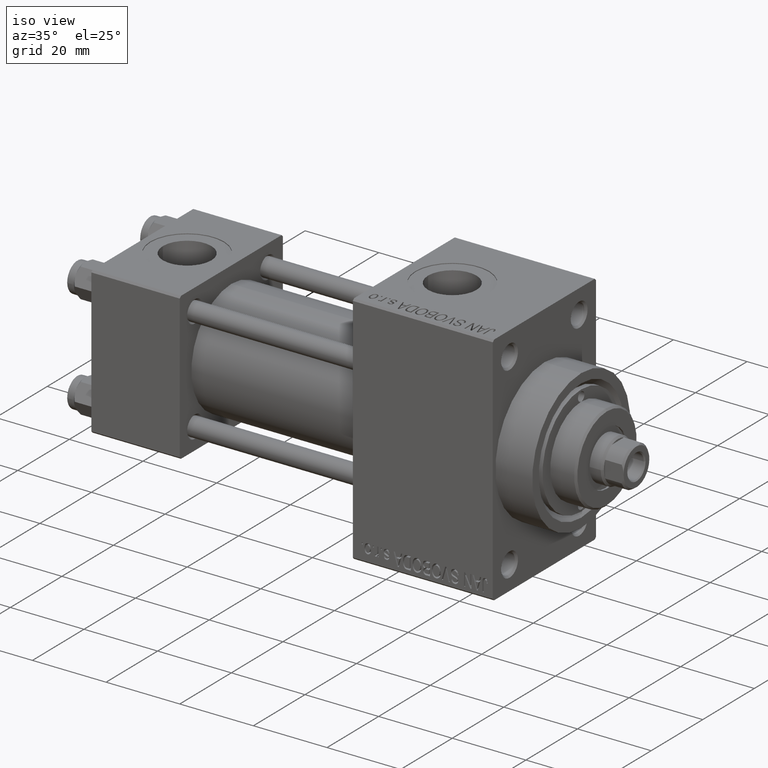
[diagram: clean part render]
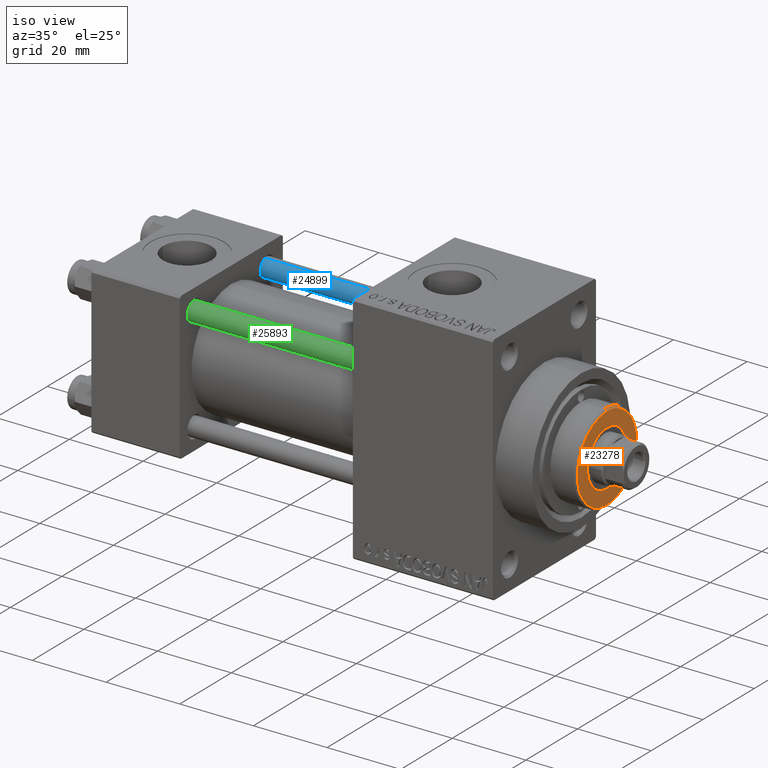
[diagram: same view with three faces highlighted in distinct colors, each labeled with its STEP entity id]
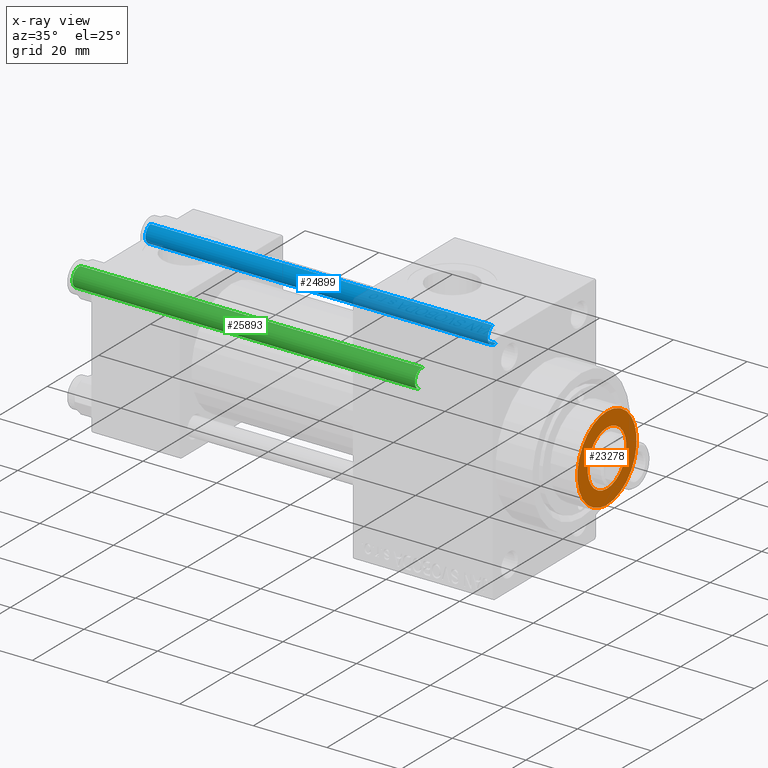
[diagram: x-ray of the same camera — body ghosted, the three highlighted faces saturated]
A machine part, iso view with three faces highlighted in distinct colors.
The next image is the same camera in x-ray (body ghosted, the three faces saturated) — at least one of them is partly hidden behind the body in this view.
Their STEP definitions:

[orange] entity #23278 — the highlighted planar face has unit normal (1, -0, -0).
#653 = DIRECTION ( 'NONE',  ( 1.000000000000000000, 0.000000000000000000, 0.000000000000000000 ) ) ;
#1772 = EDGE_LOOP ( 'NONE', ( #30188, #6991 ) ) ;
#2555 = CIRCLE ( 'NONE', #23143, 7.500000000000000888 ) ;
#3414 = CIRCLE ( 'NONE', #31114, 7.500000000000000888 ) ;
#5185 = AXIS2_PLACEMENT_3D ( 'NONE', #12958, #42698, #12477 ) ;
#6991 = ORIENTED_EDGE ( 'NONE', *, *, #14705, .F. ) ;
#7500 = AXIS2_PLACEMENT_3D ( 'NONE', #20636, #47374, #9733 ) ;
#7755 = CARTESIAN_POINT ( 'NONE',  ( 11.50000000000000355, 1.438959988998140357E-15, 50.25999999999999801 ) ) ;
#8361 = DIRECTION ( 'NONE',  ( 0.000000000000000000, 0.000000000000000000, 1.000000000000000000 ) ) ;
#8615 = ORIENTED_EDGE ( 'NONE', *, *, #36441, .T. ) ;
#9733 = DIRECTION ( 'NONE',  ( 1.000000000000000000, 0.000000000000000000, -0.000000000000000000 ) ) ;
#10148 = VERTEX_POINT ( 'NONE', #28682 ) ;
#12034 = CARTESIAN_POINT ( 'NONE',  ( 0.000000000000000000, 0.000000000000000000, 50.25999999999999801 ) ) ;
#12477 = DIRECTION ( 'NONE',  ( 1.000000000000000000, 0.000000000000000000, 0.000000000000000000 ) ) ;
#12955 = PLANE ( 'NONE',  #7500 ) ;
#12958 = CARTESIAN_POINT ( 'NONE',  ( 0.000000000000000000, 0.000000000000000000, 50.25999999999999801 ) ) ;
#12982 = DIRECTION ( 'NONE',  ( 1.000000000000000000, 0.000000000000000000, 0.000000000000000000 ) ) ;
#13707 = CIRCLE ( 'NONE', #20813, 11.50000000000000355 ) ;
#14705 = EDGE_CURVE ( 'NONE', #10148, #14880, #2555, .T. ) ;
#14880 = VERTEX_POINT ( 'NONE', #21843 ) ;
#16140 = EDGE_CURVE ( 'NONE', #35988, #19421, #13707, .T. ) ;
#19421 = VERTEX_POINT ( 'NONE', #7755 ) ;
#20040 = EDGE_CURVE ( 'NONE', #14880, #10148, #3414, .T. ) ;
#20207 = CIRCLE ( 'NONE', #5185, 11.50000000000000355 ) ;
#20636 = CARTESIAN_POINT ( 'NONE',  ( 0.000000000000000000, 0.000000000000000000, 50.25999999999999801 ) ) ;
#20813 = AXIS2_PLACEMENT_3D ( 'NONE', #42285, #8361, #23474 ) ;
#21843 = CARTESIAN_POINT ( 'NONE',  ( 7.500000000000000888, 0.000000000000000000, 50.25999999999999801 ) ) ;
#23143 = AXIS2_PLACEMENT_3D ( 'NONE', #12034, #24350, #653 ) ;
#23278 = ADVANCED_FACE ( 'NONE', ( #31070, #47128 ), #12955, .T. ) ;
#23474 = DIRECTION ( 'NONE',  ( 1.000000000000000000, 0.000000000000000000, 0.000000000000000000 ) ) ;
#24350 = DIRECTION ( 'NONE',  ( 0.000000000000000000, 0.000000000000000000, 1.000000000000000000 ) ) ;
#28682 = CARTESIAN_POINT ( 'NONE',  ( -7.500000000000000888, 9.184850993605149917E-16, 50.25999999999999801 ) ) ;
#30188 = ORIENTED_EDGE ( 'NONE', *, *, #20040, .F. ) ;
#31070 = FACE_BOUND ( 'NONE', #1772, .T. ) ;
#31114 = AXIS2_PLACEMENT_3D ( 'NONE', #35767, #39729, #12982 ) ;
#35767 = CARTESIAN_POINT ( 'NONE',  ( 0.000000000000000000, 0.000000000000000000, 50.25999999999999801 ) ) ;
#35988 = VERTEX_POINT ( 'NONE', #41605 ) ;
#36441 = EDGE_CURVE ( 'NONE', #19421, #35988, #20207, .T. ) ;
#39729 = DIRECTION ( 'NONE',  ( 0.000000000000000000, 0.000000000000000000, 1.000000000000000000 ) ) ;
#41605 = CARTESIAN_POINT ( 'NONE',  ( -11.50000000000000355, 0.000000000000000000, 50.25999999999999801 ) ) ;
#42285 = CARTESIAN_POINT ( 'NONE',  ( 0.000000000000000000, 0.000000000000000000, 50.25999999999999801 ) ) ;
#42698 = DIRECTION ( 'NONE',  ( 0.000000000000000000, 0.000000000000000000, 1.000000000000000000 ) ) ;
#43842 = EDGE_LOOP ( 'NONE', ( #47123, #8615 ) ) ;
#47123 = ORIENTED_EDGE ( 'NONE', *, *, #16140, .T. ) ;
#47128 = FACE_OUTER_BOUND ( 'NONE', #43842, .T. ) ;
#47374 = DIRECTION ( 'NONE',  ( 0.000000000000000000, 0.000000000000000000, 1.000000000000000000 ) ) ;

[blue] entity #24899 — the highlighted cylindrical surface (edge-blend (fillet) strip) has radius 2.5 mm, axis along (-1, -0, 0).
#429 = CARTESIAN_POINT ( 'NONE',  ( -2.500000000000000000, 0.000000000000000000, 94.00000000000000000 ) ) ;
#650 = CARTESIAN_POINT ( 'NONE',  ( 2.500000000000000000, 3.061616997868383141E-16, 0.5000000000000004441 ) ) ;
#2886 = EDGE_CURVE ( 'NONE', #41566, #31025, #34594, .T. ) ;
#3067 = ORIENTED_EDGE ( 'NONE', *, *, #2886, .T. ) ;
#3293 = CARTESIAN_POINT ( 'NONE',  ( 2.500000000000000000, 3.061616997868383141E-16, 93.50000000000001421 ) ) ;
#5073 = DIRECTION ( 'NONE',  ( -0.000000000000000000, -0.000000000000000000, 1.000000000000000000 ) ) ;
#7037 = VECTOR ( 'NONE', #45248, 1000.000000000000000 ) ;
#8443 = CYLINDRICAL_SURFACE ( 'NONE', #9922, 2.500000000000000000 ) ;
#8491 = CARTESIAN_POINT ( 'NONE',  ( 2.500000000000000000, 3.061616997868383141E-16, 94.00000000000000000 ) ) ;
#8938 = DIRECTION ( 'NONE',  ( 1.000000000000000000, 0.000000000000000000, 0.000000000000000000 ) ) ;
#9922 = AXIS2_PLACEMENT_3D ( 'NONE', #23559, #19829, #24043 ) ;
#10289 = VERTEX_POINT ( 'NONE', #650 ) ;
#10313 = ORIENTED_EDGE ( 'NONE', *, *, #29438, .T. ) ;
#12651 = DIRECTION ( 'NONE',  ( 0.000000000000000000, 0.000000000000000000, -1.000000000000000000 ) ) ;
#17742 = AXIS2_PLACEMENT_3D ( 'NONE', #46578, #12651, #8938 ) ;
#19322 = CIRCLE ( 'NONE', #17742, 2.500000000000000000 ) ;
#19829 = DIRECTION ( 'NONE',  ( -0.000000000000000000, -0.000000000000000000, -1.000000000000000000 ) ) ;
#23559 = CARTESIAN_POINT ( 'NONE',  ( 0.000000000000000000, 0.000000000000000000, 94.00000000000000000 ) ) ;
#23610 = DIRECTION ( 'NONE',  ( -0.000000000000000000, -0.000000000000000000, -1.000000000000000000 ) ) ;
#23662 = ORIENTED_EDGE ( 'NONE', *, *, #28581, .T. ) ;
#24043 = DIRECTION ( 'NONE',  ( -1.000000000000000000, 0.000000000000000000, 0.000000000000000000 ) ) ;
#24050 = CARTESIAN_POINT ( 'NONE',  ( -2.500000000000000000, 0.000000000000000000, 0.5000000000000004441 ) ) ;
#24899 = ADVANCED_FACE ( 'NONE', ( #42371 ), #8443, .T. ) ;
#27316 = ORIENTED_EDGE ( 'NONE', *, *, #29910, .F. ) ;
#28051 = AXIS2_PLACEMENT_3D ( 'NONE', #38536, #5073, #31101 ) ;
#28581 = EDGE_CURVE ( 'NONE', #33506, #41566, #19322, .T. ) ;
#29438 = EDGE_CURVE ( 'NONE', #31025, #10289, #43868, .T. ) ;
#29910 = EDGE_CURVE ( 'NONE', #33506, #10289, #42421, .T. ) ;
#31025 = VERTEX_POINT ( 'NONE', #24050 ) ;
#31101 = DIRECTION ( 'NONE',  ( 1.000000000000000000, 0.000000000000000000, 0.000000000000000000 ) ) ;
#33506 = VERTEX_POINT ( 'NONE', #3293 ) ;
#34594 = LINE ( 'NONE', #429, #7037 ) ;
#38536 = CARTESIAN_POINT ( 'NONE',  ( 0.000000000000000000, 0.000000000000000000, 0.5000000000000004441 ) ) ;
#39903 = VECTOR ( 'NONE', #23610, 1000.000000000000000 ) ;
#41566 = VERTEX_POINT ( 'NONE', #45654 ) ;
#42371 = FACE_OUTER_BOUND ( 'NONE', #44484, .T. ) ;
#42421 = LINE ( 'NONE', #8491, #39903 ) ;
#43868 = CIRCLE ( 'NONE', #28051, 2.500000000000000000 ) ;
#44484 = EDGE_LOOP ( 'NONE', ( #27316, #23662, #3067, #10313 ) ) ;
#45248 = DIRECTION ( 'NONE',  ( -0.000000000000000000, -0.000000000000000000, -1.000000000000000000 ) ) ;
#45654 = CARTESIAN_POINT ( 'NONE',  ( -2.500000000000000000, 0.000000000000000000, 93.50000000000001421 ) ) ;
#46578 = CARTESIAN_POINT ( 'NONE',  ( 0.000000000000000000, 0.000000000000000000, 93.50000000000001421 ) ) ;

[green] entity #25893 — the highlighted cylindrical surface (edge-blend (fillet) strip) has radius 2.5 mm, axis along (1, 0, 0).
#429 = CARTESIAN_POINT ( 'NONE',  ( -2.500000000000000000, 0.000000000000000000, 94.00000000000000000 ) ) ;
#650 = CARTESIAN_POINT ( 'NONE',  ( 2.500000000000000000, 3.061616997868383141E-16, 0.5000000000000004441 ) ) ;
#2645 = CARTESIAN_POINT ( 'NONE',  ( 0.000000000000000000, 0.000000000000000000, 0.5000000000000004441 ) ) ;
#2886 = EDGE_CURVE ( 'NONE', #41566, #31025, #34594, .T. ) ;
#3293 = CARTESIAN_POINT ( 'NONE',  ( 2.500000000000000000, 3.061616997868383141E-16, 93.50000000000001421 ) ) ;
#3479 = DIRECTION ( 'NONE',  ( 0.000000000000000000, 0.000000000000000000, -1.000000000000000000 ) ) ;
#5206 = ORIENTED_EDGE ( 'NONE', *, *, #6459, .T. ) ;
#6133 = CARTESIAN_POINT ( 'NONE',  ( 0.000000000000000000, 0.000000000000000000, 94.00000000000000000 ) ) ;
#6459 = EDGE_CURVE ( 'NONE', #41566, #33506, #10208, .T. ) ;
#6944 = CIRCLE ( 'NONE', #36995, 2.500000000000000000 ) ;
#7037 = VECTOR ( 'NONE', #45248, 1000.000000000000000 ) ;
#8491 = CARTESIAN_POINT ( 'NONE',  ( 2.500000000000000000, 3.061616997868383141E-16, 94.00000000000000000 ) ) ;
#10208 = CIRCLE ( 'NONE', #37115, 2.500000000000000000 ) ;
#10289 = VERTEX_POINT ( 'NONE', #650 ) ;
#11150 = DIRECTION ( 'NONE',  ( 1.000000000000000000, 0.000000000000000000, 0.000000000000000000 ) ) ;
#13562 = DIRECTION ( 'NONE',  ( -1.000000000000000000, 0.000000000000000000, 0.000000000000000000 ) ) ;
#13866 = ORIENTED_EDGE ( 'NONE', *, *, #2886, .F. ) ;
#17665 = EDGE_LOOP ( 'NONE', ( #5206, #32939, #45153, #13866 ) ) ;
#17746 = DIRECTION ( 'NONE',  ( -0.000000000000000000, -0.000000000000000000, 1.000000000000000000 ) ) ;
#20501 = DIRECTION ( 'NONE',  ( -0.000000000000000000, -0.000000000000000000, -1.000000000000000000 ) ) ;
#23610 = DIRECTION ( 'NONE',  ( -0.000000000000000000, -0.000000000000000000, -1.000000000000000000 ) ) ;
#24050 = CARTESIAN_POINT ( 'NONE',  ( -2.500000000000000000, 0.000000000000000000, 0.5000000000000004441 ) ) ;
#25893 = ADVANCED_FACE ( 'NONE', ( #46998 ), #43281, .T. ) ;
#29149 = DIRECTION ( 'NONE',  ( 1.000000000000000000, 0.000000000000000000, 0.000000000000000000 ) ) ;
#29910 = EDGE_CURVE ( 'NONE', #33506, #10289, #42421, .T. ) ;
#31025 = VERTEX_POINT ( 'NONE', #24050 ) ;
#32939 = ORIENTED_EDGE ( 'NONE', *, *, #29910, .T. ) ;
#33506 = VERTEX_POINT ( 'NONE', #3293 ) ;
#34594 = LINE ( 'NONE', #429, #7037 ) ;
#36995 = AXIS2_PLACEMENT_3D ( 'NONE', #2645, #17746, #29149 ) ;
#37115 = AXIS2_PLACEMENT_3D ( 'NONE', #48039, #3479, #11150 ) ;
#39233 = AXIS2_PLACEMENT_3D ( 'NONE', #6133, #20501, #13562 ) ;
#39903 = VECTOR ( 'NONE', #23610, 1000.000000000000000 ) ;
#41070 = EDGE_CURVE ( 'NONE', #10289, #31025, #6944, .T. ) ;
#41566 = VERTEX_POINT ( 'NONE', #45654 ) ;
#42421 = LINE ( 'NONE', #8491, #39903 ) ;
#43281 = CYLINDRICAL_SURFACE ( 'NONE', #39233, 2.500000000000000000 ) ;
#45153 = ORIENTED_EDGE ( 'NONE', *, *, #41070, .T. ) ;
#45248 = DIRECTION ( 'NONE',  ( -0.000000000000000000, -0.000000000000000000, -1.000000000000000000 ) ) ;
#45654 = CARTESIAN_POINT ( 'NONE',  ( -2.500000000000000000, 0.000000000000000000, 93.50000000000001421 ) ) ;
#46998 = FACE_OUTER_BOUND ( 'NONE', #17665, .T. ) ;
#48039 = CARTESIAN_POINT ( 'NONE',  ( 0.000000000000000000, 0.000000000000000000, 93.50000000000001421 ) ) ;